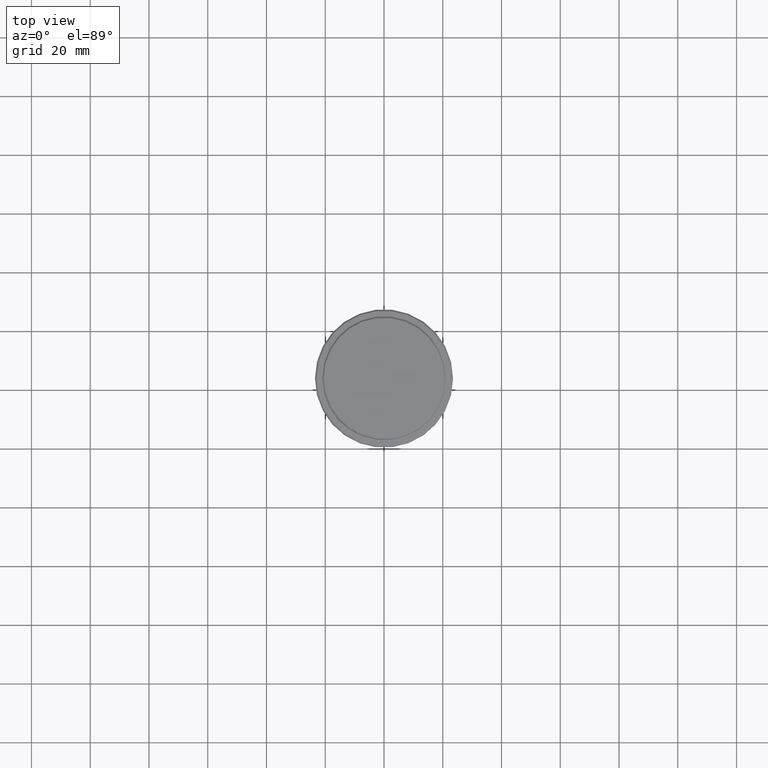
[diagram: clean part render]
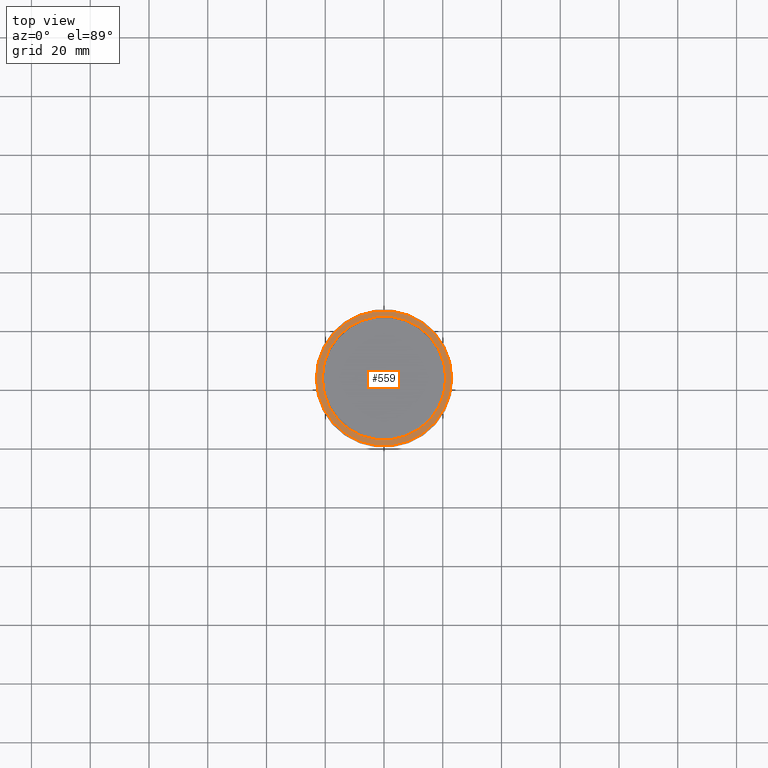
[diagram: same view with one face highlighted and labeled with its STEP entity id]
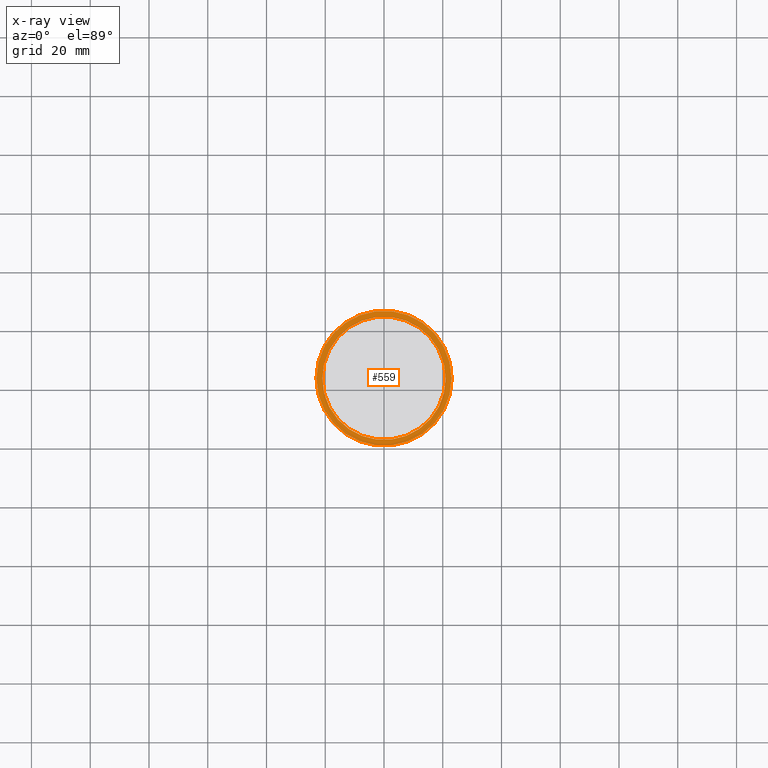
[diagram: x-ray of the same camera — body ghosted, the highlighted face saturated]
A machine part, top view. The second image highlights one B-rep face of the part: STEP entity #559.
The next image is the same camera in x-ray: the body ghosted, the highlighted face saturated — about 0% of this face is hidden behind the body in this view.
In plain terms, the highlighted planar face has unit normal (0, -0, 1).
Its self-contained STEP definition (entity closure, byte-faithful):
#32 = CARTESIAN_POINT ( 'NONE',  ( 0.000000000000000000, 0.000000000000000000, -9.000000000000001776 ) ) ;
#104 = ORIENTED_EDGE ( 'NONE', *, *, #1065, .T. ) ;
#193 = VERTEX_POINT ( 'NONE', #437 ) ;
#218 = DIRECTION ( 'NONE',  ( -0.000000000000000000, -0.000000000000000000, 1.000000000000000000 ) ) ;
#242 = DIRECTION ( 'NONE',  ( 1.000000000000000000, 0.000000000000000000, 0.000000000000000000 ) ) ;
#275 = DIRECTION ( 'NONE',  ( 0.000000000000000000, 0.000000000000000000, -1.000000000000000000 ) ) ;
#298 = AXIS2_PLACEMENT_3D ( 'NONE', #641, #1177, #835 ) ;
#329 = FACE_BOUND ( 'NONE', #967, .T. ) ;
#344 = VERTEX_POINT ( 'NONE', #841 ) ;
#350 = CIRCLE ( 'NONE', #474, 23.00000000000002487 ) ;
#360 = DIRECTION ( 'NONE',  ( 1.000000000000000000, 0.000000000000000000, 0.000000000000000000 ) ) ;
#377 = AXIS2_PLACEMENT_3D ( 'NONE', #822, #275, #722 ) ;
#413 = CARTESIAN_POINT ( 'NONE',  ( -20.99999999999999289, 2.571758278209440872E-15, -9.000000000000001776 ) ) ;
#437 = CARTESIAN_POINT ( 'NONE',  ( -23.00000000000002487, 0.000000000000000000, -9.000000000000001776 ) ) ;
#474 = AXIS2_PLACEMENT_3D ( 'NONE', #32, #218, #242 ) ;
#541 = ORIENTED_EDGE ( 'NONE', *, *, #746, .T. ) ;
#547 = EDGE_LOOP ( 'NONE', ( #104, #1416 ) ) ;
#556 = DIRECTION ( 'NONE',  ( 1.000000000000000000, 0.000000000000000000, 0.000000000000000000 ) ) ;
#559 = ADVANCED_FACE ( 'NONE', ( #1314, #329 ), #986, .T. ) ;
#641 = CARTESIAN_POINT ( 'NONE',  ( 0.000000000000000000, 0.000000000000000000, -9.000000000000001776 ) ) ;
#690 = EDGE_CURVE ( 'NONE', #801, #344, #738, .T. ) ;
#697 = AXIS2_PLACEMENT_3D ( 'NONE', #764, #1115, #556 ) ;
#713 = ORIENTED_EDGE ( 'NONE', *, *, #690, .T. ) ;
#722 = DIRECTION ( 'NONE',  ( 1.000000000000000000, 0.000000000000000000, 0.000000000000000000 ) ) ;
#738 = CIRCLE ( 'NONE', #377, 20.99999999999999289 ) ;
#746 = EDGE_CURVE ( 'NONE', #344, #801, #1332, .T. ) ;
#764 = CARTESIAN_POINT ( 'NONE',  ( 0.000000000000000000, 20.49999999999999645, -9.000000000000001776 ) ) ;
#801 = VERTEX_POINT ( 'NONE', #413 ) ;
#822 = CARTESIAN_POINT ( 'NONE',  ( 0.000000000000000000, 0.000000000000000000, -9.000000000000001776 ) ) ;
#828 = CIRCLE ( 'NONE', #1019, 23.00000000000002487 ) ;
#835 = DIRECTION ( 'NONE',  ( 1.000000000000000000, 0.000000000000000000, 0.000000000000000000 ) ) ;
#841 = CARTESIAN_POINT ( 'NONE',  ( 20.99999999999999289, 0.000000000000000000, -9.000000000000001776 ) ) ;
#967 = EDGE_LOOP ( 'NONE', ( #541, #713 ) ) ;
#986 = PLANE ( 'NONE',  #697 ) ;
#1019 = AXIS2_PLACEMENT_3D ( 'NONE', #1244, #1341, #360 ) ;
#1065 = EDGE_CURVE ( 'NONE', #193, #1339, #828, .T. ) ;
#1074 = CARTESIAN_POINT ( 'NONE',  ( 23.00000000000002487, 2.847303808017597717E-15, -9.000000000000001776 ) ) ;
#1115 = DIRECTION ( 'NONE',  ( 0.000000000000000000, -0.000000000000000000, 1.000000000000000000 ) ) ;
#1177 = DIRECTION ( 'NONE',  ( 0.000000000000000000, 0.000000000000000000, -1.000000000000000000 ) ) ;
#1244 = CARTESIAN_POINT ( 'NONE',  ( 0.000000000000000000, 0.000000000000000000, -9.000000000000001776 ) ) ;
#1314 = FACE_OUTER_BOUND ( 'NONE', #547, .T. ) ;
#1332 = CIRCLE ( 'NONE', #298, 20.99999999999999289 ) ;
#1339 = VERTEX_POINT ( 'NONE', #1074 ) ;
#1341 = DIRECTION ( 'NONE',  ( -0.000000000000000000, -0.000000000000000000, 1.000000000000000000 ) ) ;
#1400 = EDGE_CURVE ( 'NONE', #1339, #193, #350, .T. ) ;
#1416 = ORIENTED_EDGE ( 'NONE', *, *, #1400, .T. ) ;